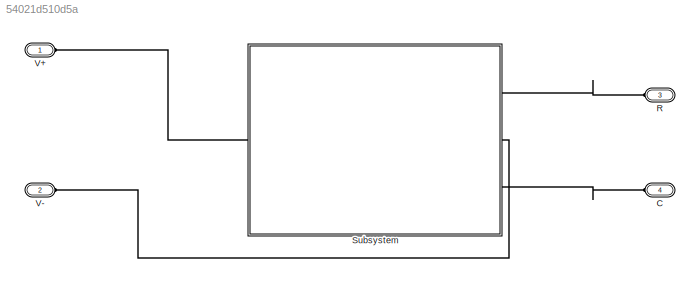
MODEL slx_54021d510d5a
KIND model
CONFIG AbsTol = auto
CONFIG EnableMultiTasking = off
CONFIG FixedStep = auto
CONFIG MaxStep = auto
CONFIG MinStep = auto
CONFIG RelTol = 1e-3
CONFIG SampleTimeConstraint = Unconstrained
CONFIG Solver = ode15s
CONFIG SolverName = ode15s
CONFIG StartTime = 0.0
CONFIG StopTime = 10.0
BLOCK [PMIOPort] C
  NameLocation = top
  Port = 4
  Side = Left
BLOCK [PMIOPort] R
  NameLocation = top
  Port = 3
  Side = Left
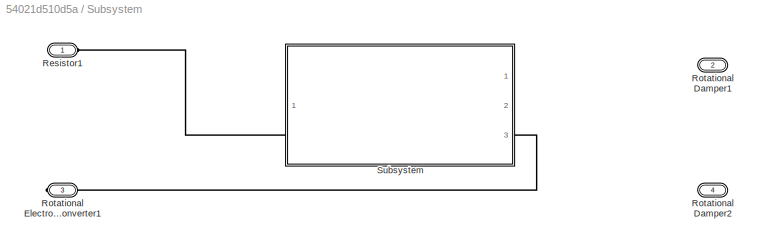
BLOCK [SubSystem] Subsystem
  Ports = [0, 0, 0, 0, 0, 1, 3]
  RequestExecContextInheritance = off
BLOCK [PMIOPort] Subsystem/Resistor1
  Side = Left
BLOCK [PMIOPort] Subsystem/Rotational Damper1
  Port = 2
  Side = Right
BLOCK [PMIOPort] Subsystem/Rotational Damper2
  Port = 4
  Side = Right
BLOCK [PMIOPort] Subsystem/Rotational Electromechanical Converter1
  Port = 3
  Side = Right
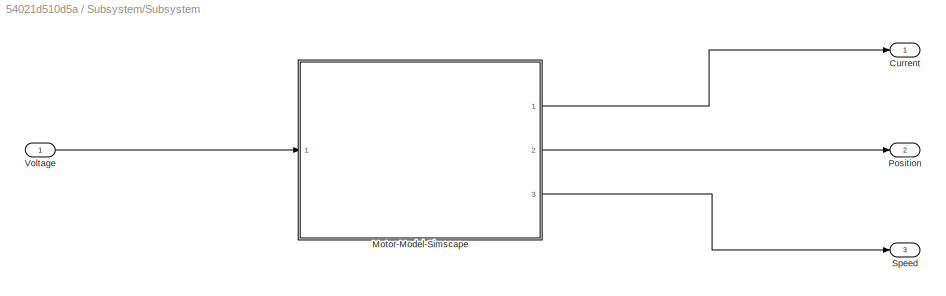
BLOCK [SubSystem] Subsystem/Subsystem
  Ports = [1, 3]
  RequestExecContextInheritance = off
BLOCK [Outport] Subsystem/Subsystem/Current
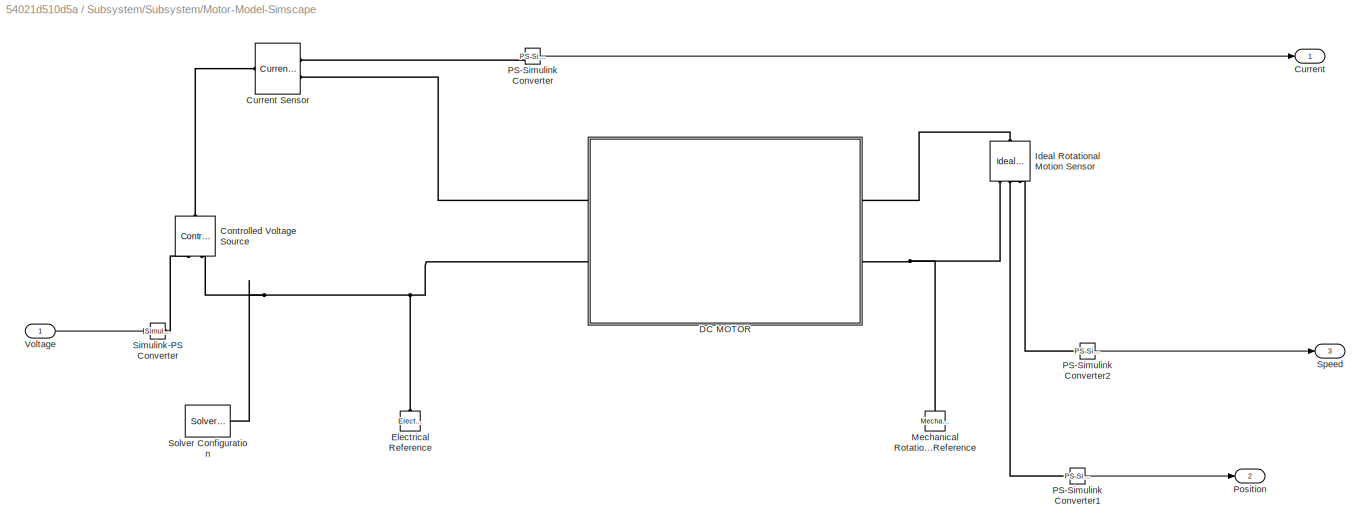
BLOCK [SubSystem] Subsystem/Subsystem/Motor-Model-Simscape
  Ports = [1, 3]
  RequestExecContextInheritance = off
BLOCK [Reference] Subsystem/Subsystem/Motor-Model-Simscape/Controlled Voltage Source  REF=fl_lib/Electrical/Electrical Sources/Controlled Voltage
Source
  NameLocation = right
  Ports = [0, 0, 0, 0, 0, 1, 2]
  SourceBlock = fl_lib/Electrical/Electrical Sources/Controlled Voltage\nSource
  SourceProductBaseCode = SS
  SourceType = Controlled Voltage\nSource
BLOCK [Outport] Subsystem/Subsystem/Motor-Model-Simscape/Current
BLOCK [Reference] Subsystem/Subsystem/Motor-Model-Simscape/Current Sensor  REF=fl_lib/Electrical/Electrical Sensors/Current Sensor
  Ports = [0, 0, 0, 0, 0, 1, 2]
  SourceBlock = fl_lib/Electrical/Electrical Sensors/Current Sensor
  SourceProductBaseCode = SS
  SourceType = Current Sensor
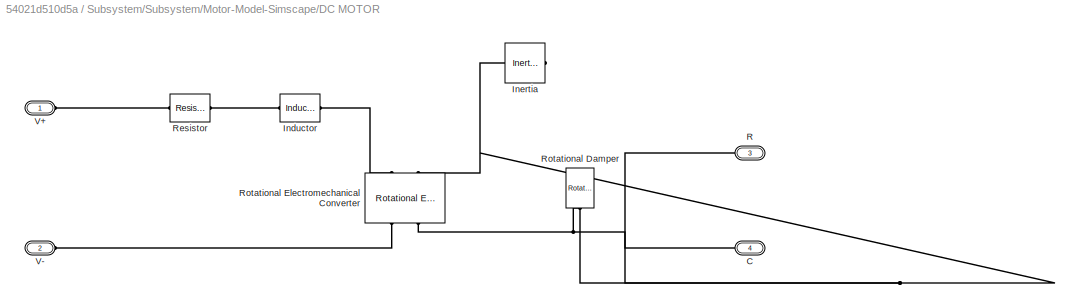
BLOCK [SubSystem] Subsystem/Subsystem/Motor-Model-Simscape/DC MOTOR
  Ports = [0, 0, 0, 0, 0, 2, 2]
  RequestExecContextInheritance = off
BLOCK [PMIOPort] Subsystem/Subsystem/Motor-Model-Simscape/DC MOTOR/C
  Port = 4
  Side = Right
BLOCK [Reference] Subsystem/Subsystem/Motor-Model-Simscape/DC MOTOR/Inductor  REF=fl_lib/Electrical/Electrical Elements/Inductor
  Ports = [0, 0, 0, 0, 0, 1, 1]
  SourceBlock = fl_lib/Electrical/Electrical Elements/Inductor
  SourceProductBaseCode = SS
  SourceType = Inductor
BLOCK [Reference] Subsystem/Subsystem/Motor-Model-Simscape/DC MOTOR/Inertia  REF=fl_lib/Mechanical/Rotational Elements/Inertia
  NameLocation = top
  Ports = [0, 0, 0, 0, 0, 1]
  SourceBlock = fl_lib/Mechanical/Rotational Elements/Inertia
  SourceProductBaseCode = SS
  SourceType = Inertia
BLOCK [PMIOPort] Subsystem/Subsystem/Motor-Model-Simscape/DC MOTOR/R
  Port = 3
  Side = Right
BLOCK [Reference] Subsystem/Subsystem/Motor-Model-Simscape/DC MOTOR/Resistor  REF=fl_lib/Electrical/Electrical Elements/Resistor
  Ports = [0, 0, 0, 0, 0, 1, 1]
  SourceBlock = fl_lib/Electrical/Electrical Elements/Resistor
  SourceProductBaseCode = SS
  SourceType = Resistor
BLOCK [Reference] Subsystem/Subsystem/Motor-Model-Simscape/DC MOTOR/Rotational Damper  REF=fl_lib/Mechanical/Rotational Elements/Rotational Damper
  NameLocation = right
  Ports = [0, 0, 0, 0, 0, 1, 1]
  SourceBlock = fl_lib/Mechanical/Rotational Elements/Rotational Damper
  SourceProductBaseCode = SS
  SourceType = Rotational Damper
BLOCK [Reference] Subsystem/Subsystem/Motor-Model-Simscape/DC MOTOR/Rotational Electromechanical Converter  REF=fl_lib/Electrical/Electrical Elements/Rotational
Electromechanical
Converter
  NameLocation = right
  Ports = [0, 0, 0, 0, 0, 2, 2]
  SourceBlock = fl_lib/Electrical/Electrical Elements/Rotational\nElectromechanical\nConverter
  SourceProductBaseCode = SS
  SourceType = Rotational\nElectromechanical\nConverter
BLOCK [PMIOPort] Subsystem/Subsystem/Motor-Model-Simscape/DC MOTOR/V+
  Side = Left
BLOCK [PMIOPort] Subsystem/Subsystem/Motor-Model-Simscape/DC MOTOR/V-
  Port = 2
  Side = Left
BLOCK [Reference] Subsystem/Subsystem/Motor-Model-Simscape/Electrical Reference  REF=fl_lib/Electrical/Electrical Elements/Electrical Reference
  NameLocation = right
  Ports = [0, 0, 0, 0, 0, 1]
  SourceBlock = fl_lib/Electrical/Electrical Elements/Electrical Reference
  SourceProductBaseCode = SS
  SourceType = Electrical Reference
BLOCK [Reference] Subsystem/Subsystem/Motor-Model-Simscape/Ideal Rotational Motion Sensor  REF=fl_lib/Mechanical/Mechanical Sensors/Ideal Rotational
Motion Sensor
  NameLocation = left
  Ports = [0, 0, 0, 0, 0, 1, 3]
  SourceBlock = fl_lib/Mechanical/Mechanical Sensors/Ideal Rotational\nMotion Sensor
  SourceProductBaseCode = SS
  SourceType = Ideal Rotational\nMotion Sensor
BLOCK [Reference] Subsystem/Subsystem/Motor-Model-Simscape/Mechanical Rotational Reference  REF=fl_lib/Mechanical/Rotational Elements/Mechanical
Rotational Reference
  NameLocation = right
  Ports = [0, 0, 0, 0, 0, 1]
  SourceBlock = fl_lib/Mechanical/Rotational Elements/Mechanical\nRotational Reference
  SourceProductBaseCode = SS
  SourceType = Mechanical\nRotational Reference
BLOCK [Reference] Subsystem/Subsystem/Motor-Model-Simscape/PS-Simulink Converter  REF=nesl_utility/PS-Simulink
Converter
  Ports = [0, 1, 0, 0, 0, 1]
  SourceBlock = nesl_utility/PS-Simulink\nConverter
  SourceProductBaseCode = SS
  SourceType = PS-Simulink\nConverter
BLOCK [Reference] Subsystem/Subsystem/Motor-Model-Simscape/PS-Simulink Converter1  REF=nesl_utility/PS-Simulink
Converter
  Ports = [0, 1, 0, 0, 0, 1]
  SourceBlock = nesl_utility/PS-Simulink\nConverter
  SourceProductBaseCode = SS
  SourceType = PS-Simulink\nConverter
BLOCK [Reference] Subsystem/Subsystem/Motor-Model-Simscape/PS-Simulink Converter2  REF=nesl_utility/PS-Simulink
Converter
  Ports = [0, 1, 0, 0, 0, 1]
  SourceBlock = nesl_utility/PS-Simulink\nConverter
  SourceProductBaseCode = SS
  SourceType = PS-Simulink\nConverter
BLOCK [Outport] Subsystem/Subsystem/Motor-Model-Simscape/Position
  Port = 2
BLOCK [Reference] Subsystem/Subsystem/Motor-Model-Simscape/Simulink-PS Converter  REF=nesl_utility/Simulink-PS
Converter
  Ports = [1, 0, 0, 0, 0, 0, 1]
  SourceBlock = nesl_utility/Simulink-PS\nConverter
  SourceProductBaseCode = SS
  SourceType = Simulink-PS\nConverter
BLOCK [Reference] Subsystem/Subsystem/Motor-Model-Simscape/Solver Configuration  REF=nesl_utility/Solver
Configuration
  Ports = [0, 0, 0, 0, 0, 0, 1]
  SourceBlock = nesl_utility/Solver\nConfiguration
  SourceProductBaseCode = SS
  SourceType = Solver\nConfiguration
BLOCK [Outport] Subsystem/Subsystem/Motor-Model-Simscape/Speed
  Port = 3
BLOCK [Inport] Subsystem/Subsystem/Motor-Model-Simscape/Voltage
BLOCK [Outport] Subsystem/Subsystem/Position
  Port = 2
BLOCK [Outport] Subsystem/Subsystem/Speed
  Port = 3
BLOCK [Inport] Subsystem/Subsystem/Voltage
BLOCK [PMIOPort] V+
  Side = Left
BLOCK [PMIOPort] V-
  Port = 2
  Side = Left
LINE Subsystem/Subsystem/Motor-Model-Simscape/PS-Simulink Converter1:1 -> Subsystem/Subsystem/Motor-Model-Simscape/Position:1
LINE Subsystem/Subsystem/Motor-Model-Simscape/PS-Simulink Converter2:1 -> Subsystem/Subsystem/Motor-Model-Simscape/Speed:1
LINE Subsystem/Subsystem/Motor-Model-Simscape/PS-Simulink Converter:1 -> Subsystem/Subsystem/Motor-Model-Simscape/Current:1
LINE Subsystem/Subsystem/Motor-Model-Simscape/Voltage:1 -> Subsystem/Subsystem/Motor-Model-Simscape/Simulink-PS Converter:1
LINE Subsystem/Subsystem/Motor-Model-Simscape:1 -> Subsystem/Subsystem/Current:1
LINE Subsystem/Subsystem/Motor-Model-Simscape:2 -> Subsystem/Subsystem/Position:1
LINE Subsystem/Subsystem/Motor-Model-Simscape:3 -> Subsystem/Subsystem/Speed:1
LINE Subsystem/Subsystem/Voltage:1 -> Subsystem/Subsystem/Motor-Model-Simscape:1
PLINE C:RConn1 -- Subsystem:RConn3
PLINE R:RConn1 -- Subsystem:RConn1
PLINE Subsystem/Subsystem/Motor-Model-Simscape/Controlled Voltage Source:LConn1 -- Subsystem/Subsystem/Motor-Model-Simscape/Current Sensor:LConn1
PLINE Subsystem/Subsystem/Motor-Model-Simscape/Controlled Voltage Source:RConn1 -- Subsystem/Subsystem/Motor-Model-Simscape/Simulink-PS Converter:RConn1
PNET net1: Subsystem/Subsystem/Motor-Model-Simscape/Controlled Voltage Source:RConn2 -- Subsystem/Subsystem/Motor-Model-Simscape/DC MOTOR:LConn2 -- Subsystem/Subsystem/Motor-Model-Simscape/Electrical Reference:LConn1 -- Subsystem/Subsystem/Motor-Model-Simscape/Solver Configuration:RConn1
PLINE Subsystem/Subsystem/Motor-Model-Simscape/Current Sensor:RConn1 -- Subsystem/Subsystem/Motor-Model-Simscape/PS-Simulink Converter:LConn1
PLINE Subsystem/Subsystem/Motor-Model-Simscape/Current Sensor:RConn2 -- Subsystem/Subsystem/Motor-Model-Simscape/DC MOTOR:LConn1
PNET net2: Subsystem/Subsystem/Motor-Model-Simscape/DC MOTOR/C:RConn1 -- Subsystem/Subsystem/Motor-Model-Simscape/DC MOTOR/Rotational Damper:LConn1 -- Subsystem/Subsystem/Motor-Model-Simscape/DC MOTOR/Rotational Electromechanical Converter:RConn2
PLINE Subsystem/Subsystem/Motor-Model-Simscape/DC MOTOR/Inductor:LConn1 -- Subsystem/Subsystem/Motor-Model-Simscape/DC MOTOR/Resistor:RConn1
PLINE Subsystem/Subsystem/Motor-Model-Simscape/DC MOTOR/Inductor:RConn1 -- Subsystem/Subsystem/Motor-Model-Simscape/DC MOTOR/Rotational Electromechanical Converter:LConn1
PNET net3: Subsystem/Subsystem/Motor-Model-Simscape/DC MOTOR/Inertia:LConn1 -- Subsystem/Subsystem/Motor-Model-Simscape/DC MOTOR/R:RConn1 -- Subsystem/Subsystem/Motor-Model-Simscape/DC MOTOR/Rotational Damper:RConn1 -- Subsystem/Subsystem/Motor-Model-Simscape/DC MOTOR/Rotational Electromechanical Converter:LConn2
PLINE Subsystem/Subsystem/Motor-Model-Simscape/DC MOTOR/Resistor:LConn1 -- Subsystem/Subsystem/Motor-Model-Simscape/DC MOTOR/V+:RConn1
PLINE Subsystem/Subsystem/Motor-Model-Simscape/DC MOTOR/Rotational Electromechanical Converter:RConn1 -- Subsystem/Subsystem/Motor-Model-Simscape/DC MOTOR/V-:RConn1
PLINE Subsystem/Subsystem/Motor-Model-Simscape/DC MOTOR:RConn1 -- Subsystem/Subsystem/Motor-Model-Simscape/Ideal Rotational Motion Sensor:LConn1
PNET net4: Subsystem/Subsystem/Motor-Model-Simscape/DC MOTOR:RConn2 -- Subsystem/Subsystem/Motor-Model-Simscape/Ideal Rotational Motion Sensor:RConn1 -- Subsystem/Subsystem/Motor-Model-Simscape/Mechanical Rotational Reference:LConn1
PLINE Subsystem/Subsystem/Motor-Model-Simscape/Ideal Rotational Motion Sensor:RConn2 -- Subsystem/Subsystem/Motor-Model-Simscape/PS-Simulink Converter2:LConn1
PLINE Subsystem/Subsystem/Motor-Model-Simscape/Ideal Rotational Motion Sensor:RConn3 -- Subsystem/Subsystem/Motor-Model-Simscape/PS-Simulink Converter1:LConn1
PLINE Subsystem:LConn1 -- V+:RConn1
PLINE Subsystem:RConn2 -- V-:RConn1
note: PNET lines group multi-terminal physical nets as a canonical sorted terminal list (undirected conserving connections); 2-terminal nets keep the pairwise PLINE form
